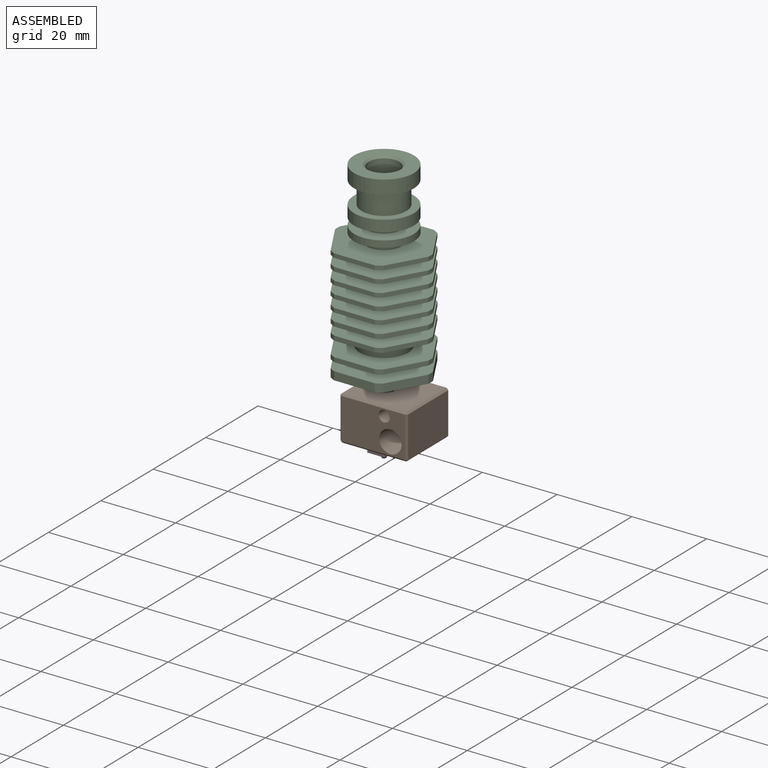
[diagram: assembled view]
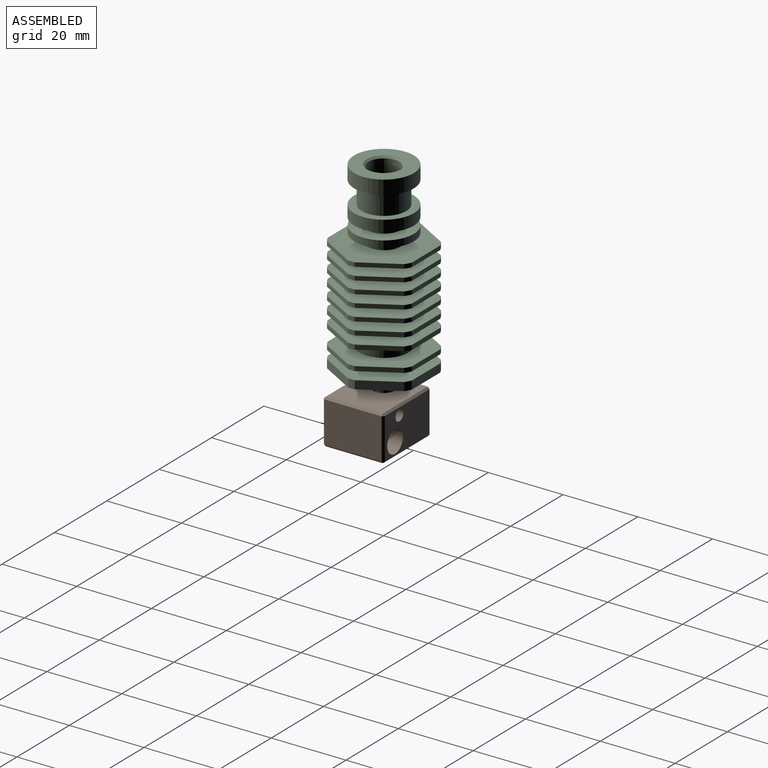
[diagram: assembled view, second angle]
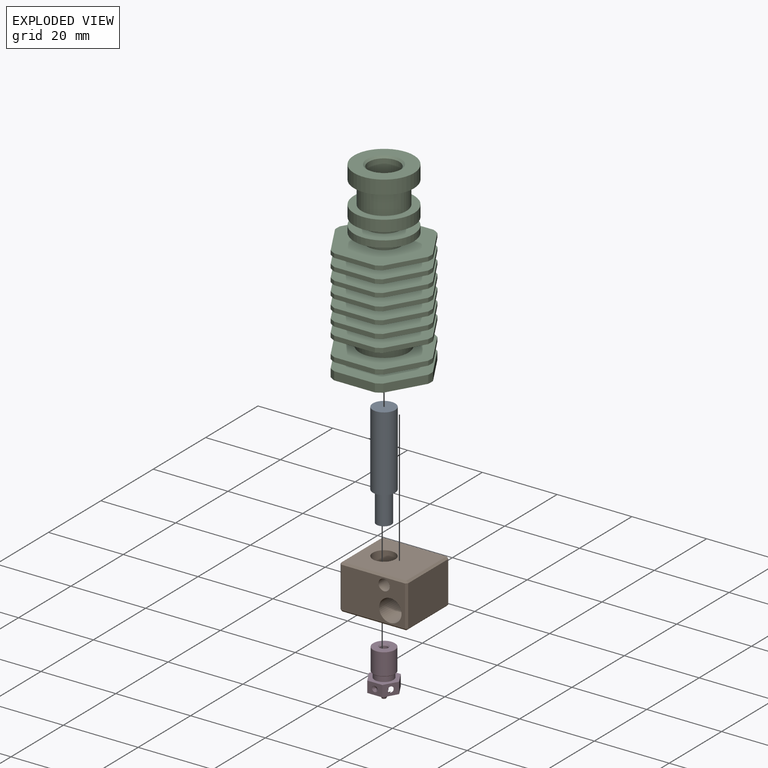
[diagram: exploded view]
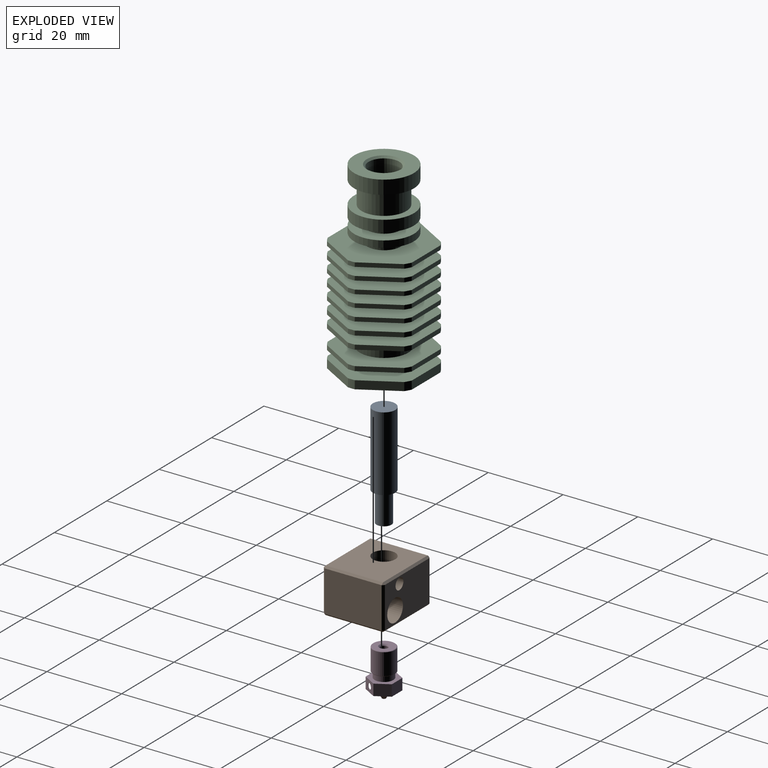
[diagram: exploded view, second angle]
ASSEMBLY  parts=4 mates=3
PART A: 5 faces, bbox 6x6x28 mm
  f0: cylinder r=3mm len=20mm, axis (0,0,-1), area 377mm2, adj f1,f2
  f1: plane 6x6mm, normal (0,0,1), area 28.3mm2, adj f0
  f2: plane 6x6mm, normal (0,0,-1), area 15.7mm2, adj f0,f3
  f3: cylinder r=2mm len=8mm, axis (0,0,1), area 100.5mm2, adj f2,f4
  f4: plane 4x4mm, normal (0,0,-1), area 12.6mm2, adj f3
PART B: 29 faces, bbox 16.3x18.1x12 mm
  f0: plane 15.3x11mm, normal (0,1,0), area 168.3mm2, adj f14,f23,f24,f28
  f1: plane 17.08x11mm, normal (-1,0,0), area 152.5mm2, adj f7,f8,f9,f13,f14,f15
  f2: plane 15.3x11mm, normal (0,-1,0), area 168.3mm2, adj f9,f12,f16,f17
  f3: plane 17.08x11mm, normal (1,0,0), area 152.5mm2, adj f7,f8,f17,f22,f25,f28
  f4: plane 17.08x15.3mm, normal (0,0,1), area 233.1mm2, adj f6,f12,f13,f22,f23
  f5: plane 17.08x15.3mm, normal (0,0,-1), area 233.1mm2, adj f6,f15,f16,f24,f25
  f6: cylinder r=3mm len=12mm, axis (0,0,-1), area 226.2mm2, adj f4,f5
  f7: cylinder r=1.5mm len=16.3mm, axis (-1,0,0), area 153.7mm2, adj f1,f3
  f8: cylinder r=3mm len=16.3mm, axis (-1,0,0), area 307.3mm2, adj f1,f3
  f9: plane 11x0.5mm, normal (-0.71,-0.71,0), area 7.8mm2, adj f1,f2,f10,f11
  f10: plane 0.5x0.5mm, normal (-0.58,-0.58,0.58), area 0.2mm2, adj f9,f12,f13
  f11: plane 0.5x0.5mm, normal (-0.58,-0.58,-0.58), area 0.2mm2, adj f9,f15,f16
  f12: plane 15.3x0.5mm, normal (0,-0.71,0.71), area 10.8mm2, adj f2,f4,f10,f18
  f13: plane 17.08x0.5mm, normal (-0.71,0,0.71), area 12.1mm2, adj f1,f4,f10,f19
  f14: plane 11x0.5mm, normal (-0.71,0.71,0), area 7.8mm2, adj f0,f1,f19,f20
  f15: plane 17.08x0.5mm, normal (-0.71,0,-0.71), area 12.1mm2, adj f1,f5,f11,f20
  f16: plane 15.3x0.5mm, normal (0,-0.71,-0.71), area 10.8mm2, adj f2,f5,f11,f21
  f17: plane 11x0.5mm, normal (0.71,-0.71,0), area 7.8mm2, adj f2,f3,f18,f21
  f18: plane 0.5x0.5mm, normal (0.58,-0.58,0.58), area 0.2mm2, adj f12,f17,f22
  f19: plane 0.5x0.5mm, normal (-0.58,0.58,0.58), area 0.2mm2, adj f13,f14,f23
  f20: plane 0.5x0.5mm, normal (-0.58,0.58,-0.58), area 0.2mm2, adj f14,f15,f24
  f21: plane 0.5x0.5mm, normal (0.58,-0.58,-0.58), area 0.2mm2, adj f16,f17,f25
  f22: plane 17.08x0.5mm, normal (0.71,0,0.71), area 12.1mm2, adj f3,f4,f18,f26
  f23: plane 15.3x0.5mm, normal (0,0.71,0.71), area 10.8mm2, adj f0,f4,f19,f26
  f24: plane 15.3x0.5mm, normal (0,0.71,-0.71), area 10.8mm2, adj f0,f5,f20,f27
  f25: plane 17.08x0.5mm, normal (0.71,0,-0.71), area 12.1mm2, adj f3,f5,f21,f27
  f26: plane 0.5x0.5mm, normal (0.58,0.58,0.58), area 0.2mm2, adj f22,f23,f28
  f27: plane 0.5x0.5mm, normal (0.58,0.58,-0.58), area 0.2mm2, adj f24,f25,f28
  f28: plane 11x0.5mm, normal (0.71,0.71,0), area 7.8mm2, adj f0,f3,f26,f27
PART C: 153 faces, bbox 25x22.5x50.4 mm
  f0: plane 25x22.5mm, normal (0,0,1), area 372.2mm2, adj f1,f2,f3,f4,f5,f6,f82,f142
  f1: cylinder r=12.5mm len=1.81mm, axis (0,0,1), area 2mm2, adj f0,f7,f146,f147
  f2: cylinder r=12.5mm len=1.57mm, axis (0,0,1), area 2mm2, adj f0,f7,f142,f147
  f3: cylinder r=12.5mm len=1.57mm, axis (0,0,1), area 2mm2, adj f0,f7,f145,f146
  f4: cylinder r=12.5mm len=1.57mm, axis (0,0,1), area 2mm2, adj f0,f7,f144,f145
  f5: cylinder r=12.5mm len=1.81mm, axis (0,0,1), area 2mm2, adj f0,f7,f143,f144
  f6: cylinder r=12.5mm len=1.57mm, axis (0,0,1), area 2mm2, adj f0,f7,f142,f143
  f7: plane 25x22.5mm, normal (0,0,-1), area 372.2mm2, adj f1,f2,f3,f4,f5,f6,f89,f142
  f8: plane 25x22.5mm, normal (0,0,-1), area 372.2mm2, adj f10,f11,f12,f13,f14,f15,f90,f136
  f9: plane 25x22.5mm, normal (0,0,1), area 372.2mm2, adj f10,f11,f12,f13,f14,f15,f89,f136
  f10: cylinder r=12.5mm len=1.81mm, axis (0,0,1), area 2mm2, adj f8,f9,f140,f141
  f11: cylinder r=12.5mm len=1.57mm, axis (0,0,1), area 2mm2, adj f8,f9,f136,f141
  f12: cylinder r=12.5mm len=1.57mm, axis (0,0,1), area 2mm2, adj f8,f9,f139,f140
  f13: cylinder r=12.5mm len=1.57mm, axis (0,0,1), area 2mm2, adj f8,f9,f138,f139
  f14: cylinder r=12.5mm len=1.81mm, axis (0,0,1), area 2mm2, adj f8,f9,f137,f138
  f15: cylinder r=12.5mm len=1.57mm, axis (0,0,1), area 2mm2, adj f8,f9,f136,f137
  f16: plane 25x22.5mm, normal (0,0,-1), area 372.2mm2, adj f18,f19,f20,f21,f22,f23,f91,f130
  f17: plane 25x22.5mm, normal (0,0,1), area 372.2mm2, adj f18,f19,f20,f21,f22,f23,f90,f130
  f18: cylinder r=12.5mm len=1.81mm, axis (0,0,1), area 2mm2, adj f16,f17,f134,f135
  f19: cylinder r=12.5mm len=1.57mm, axis (0,0,1), area 2mm2, adj f16,f17,f130,f135
  f20: cylinder r=12.5mm len=1.57mm, axis (0,0,1), area 2mm2, adj f16,f17,f133,f134
  f21: cylinder r=12.5mm len=1.57mm, axis (0,0,1), area 2mm2, adj f16,f17,f132,f133
  f22: cylinder r=12.5mm len=1.81mm, axis (0,0,1), area 2mm2, adj f16,f17,f131,f132
  f23: cylinder r=12.5mm len=1.57mm, axis (0,0,1), area 2mm2, adj f16,f17,f130,f131
  f24: plane 25x22.5mm, normal (0,0,-1), area 372.2mm2, adj f26,f27,f28,f29,f30,f31,f76,f124
  f25: plane 25x22.5mm, normal (0,0,1), area 372.2mm2, adj f26,f27,f28,f29,f30,f31,f91,f124
  f26: cylinder r=12.5mm len=1.81mm, axis (0,0,1), area 2mm2, adj f24,f25,f128,f129
  f27: cylinder r=12.5mm len=1.57mm, axis (0,0,1), area 2mm2, adj f24,f25,f124,f129
  f28: cylinder r=12.5mm len=1.57mm, axis (0,0,1), area 2mm2, adj f24,f25,f127,f128
  f29: cylinder r=12.5mm len=1.57mm, axis (0,0,1), area 2mm2, adj f24,f25,f126,f127
  f30: cylinder r=12.5mm len=1.81mm, axis (0,0,1), area 2mm2, adj f24,f25,f125,f126
  f31: cylinder r=12.5mm len=1.57mm, axis (0,0,1), area 2mm2, adj f24,f25,f124,f125
  f32: plane 25x22.5mm, normal (0,0,1), area 372.2mm2, adj f33,f34,f35,f36,f37,f38,f76,f118
  f33: cylinder r=12.5mm len=1.81mm, axis (0,0,1), area 2mm2, adj f32,f39,f122,f123
  f34: cylinder r=12.5mm len=1.57mm, axis (0,0,1), area 2mm2, adj f32,f39,f118,f123
  f35: cylinder r=12.5mm len=1.57mm, axis (0,0,1), area 2mm2, adj f32,f39,f121,f122
  f36: cylinder r=12.5mm len=1.57mm, axis (0,0,1), area 2mm2, adj f32,f39,f120,f121
  f37: cylinder r=12.5mm len=1.81mm, axis (0,0,1), area 2mm2, adj f32,f39,f119,f120
  f38: cylinder r=12.5mm len=1.57mm, axis (0,0,1), area 2mm2, adj f32,f39,f118,f119
  f39: plane 25x22.5mm, normal (0,0,-1), area 303.1mm2, adj f33,f34,f35,f36,f37,f38,f75,f118
  f40: plane 25x22.5mm, normal (0,0,1), area 303.1mm2, adj f41,f42,f43,f44,f45,f46,f75,f112
  f41: cylinder r=12.5mm len=1.81mm, axis (0,0,1), area 2.2mm2, adj f40,f47,f116,f117
  f42: cylinder r=12.5mm len=1.57mm, axis (0,0,1), area 2.2mm2, adj f40,f47,f112,f117
  f43: cylinder r=12.5mm len=1.57mm, axis (0,0,1), area 2.2mm2, adj f40,f47,f115,f116
  f44: cylinder r=12.5mm len=1.57mm, axis (0,0,1), area 2.2mm2, adj f40,f47,f114,f115
  f45: cylinder r=12.5mm len=1.81mm, axis (0,0,1), area 2.2mm2, adj f40,f47,f113,f114
  f46: cylinder r=12.5mm len=1.57mm, axis (0,0,1), area 2.2mm2, adj f40,f47,f112,f113
  f47: plane 25x22.5mm, normal (0,0,-1), area 303.1mm2, adj f41,f42,f43,f44,f45,f46,f74,f112
  f48: plane 25x22.5mm, normal (0,0,1), area 303.1mm2, adj f49,f50,f51,f52,f53,f54,f74,f106
  f49: cylinder r=12.5mm len=1.81mm, axis (0,0,1), area 2.2mm2, adj f48,f55,f110,f111
  f50: cylinder r=12.5mm len=1.57mm, axis (0,0,1), area 2.2mm2, adj f48,f55,f106,f111
  f51: cylinder r=12.5mm len=1.57mm, axis (0,0,1), area 2.2mm2, adj f48,f55,f109,f110
  f52: cylinder r=12.5mm len=1.57mm, axis (0,0,1), area 2.2mm2, adj f48,f55,f108,f109
  f53: cylinder r=12.5mm len=1.81mm, axis (0,0,1), area 2.2mm2, adj f48,f55,f107,f108
  f54: cylinder r=12.5mm len=1.57mm, axis (0,0,1), area 2.2mm2, adj f48,f55,f106,f107
  f55: plane 25x22.5mm, normal (0,0,-1), area 303.1mm2, adj f49,f50,f51,f52,f53,f54,f73,f106
  f56: plane 25x22.5mm, normal (0,0,1), area 303.1mm2, adj f57,f58,f59,f60,f61,f62,f73,f100
  f57: cylinder r=12.5mm len=1.81mm, axis (0,0,1), area 2.2mm2, adj f56,f63,f104,f105
  f58: cylinder r=12.5mm len=1.57mm, axis (0,0,1), area 2.2mm2, adj f56,f63,f100,f105
  f59: cylinder r=12.5mm len=1.57mm, axis (0,0,1), area 2.2mm2, adj f56,f63,f103,f104
  f60: cylinder r=12.5mm len=1.57mm, axis (0,0,1), area 2.2mm2, adj f56,f63,f102,f103
  f61: cylinder r=12.5mm len=1.81mm, axis (0,0,1), area 2.2mm2, adj f56,f63,f101,f102
  f62: cylinder r=12.5mm len=1.57mm, axis (0,0,1), area 2.2mm2, adj f56,f63,f100,f101
  f63: plane 25x22.5mm, normal (0,0,-1), area 303.1mm2, adj f57,f58,f59,f60,f61,f62,f72,f100
  f64: plane 25x22.5mm, normal (0,0,1), area 303.1mm2, adj f65,f66,f67,f68,f69,f70,f72,f94
  f65: cylinder r=12.5mm len=2.2mm, axis (0,0,1), area 4mm2, adj f64,f71,f98,f99
  f66: cylinder r=12.5mm len=2.2mm, axis (0,0,1), area 4mm2, adj f64,f71,f94,f99
  f67: cylinder r=12.5mm len=2.2mm, axis (0,0,1), area 4mm2, adj f64,f71,f97,f98
  f68: cylinder r=12.5mm len=2.2mm, axis (0,0,1), area 4mm2, adj f64,f71,f96,f97
  f69: cylinder r=12.5mm len=2.2mm, axis (0,0,1), area 4mm2, adj f64,f71,f95,f96
  f70: cylinder r=12.5mm len=2.2mm, axis (0,0,1), area 4mm2, adj f64,f71,f94,f95
  f71: plane 25x22.5mm, normal (0,0,-1), area 281.9mm2, adj f65,f66,f67,f68,f69,f70,f92,f94
  f72: cylinder r=6.5mm len=13mm, axis (0,0,-1), area 89.8mm2, adj f63,f64
  f73: cylinder r=6.5mm len=13mm, axis (0,0,-1), area 163.4mm2, adj f55,f56
  f74: cylinder r=6.5mm len=13mm, axis (0,0,-1), area 89.8mm2, adj f47,f48
  f75: cylinder r=6.5mm len=13mm, axis (0,0,-1), area 89.8mm2, adj f39,f40
  f76: cylinder r=4.5mm len=9mm, axis (0,0,1), area 62.2mm2, adj f24,f32
  f77: plane 16x16mm, normal (0,0,-1), area 137.4mm2, adj f78,f88
  f78: cylinder r=4.5mm len=9mm, axis (0,0,1), area 56.5mm2, adj f77,f79
  f79: plane 16x16mm, normal (0,0,1), area 137.4mm2, adj f78,f80
  f80: cylinder r=8mm len=16mm, axis (0,0,1), area 90.5mm2, adj f79,f81
  f81: plane 16x16mm, normal (0,0,-1), area 137.4mm2, adj f80,f82
  f82: cylinder r=4.5mm len=9mm, axis (0,0,1), area 62.2mm2, adj f0,f81
  f83: plane 16x16mm, normal (0,0,1), area 134.6mm2, adj f84,f152
  f84: cylinder r=8mm len=16mm, axis (0,0,1), area 186mm2, adj f83,f85
  f85: plane 16x16mm, normal (0,0,-1), area 88mm2, adj f84,f86
  f86: cylinder r=6mm len=12mm, axis (0,0,1), area 226.2mm2, adj f85,f87
  f87: plane 16x16mm, normal (0,0,1), area 88mm2, adj f86,f88
  f88: cylinder r=8mm len=16mm, axis (0,0,1), area 150.8mm2, adj f77,f87
  f89: cylinder r=4.5mm len=9mm, axis (0,0,1), area 62.2mm2, adj f7,f9
  f90: cylinder r=4.5mm len=9mm, axis (0,0,1), area 62.2mm2, adj f8,f17
  f91: cylinder r=4.5mm len=9mm, axis (0,0,1), area 62.2mm2, adj f16,f25
  f92: cone r=7mm half-angle=45deg, axis (0,0,1), area 57.8mm2, adj f71,f93
  f93: plane 12x12mm, normal (0,0,-1), area 84.8mm2, adj f92,f150
  f94: plane 10.9x2.2mm, normal (0,-1,0), area 24mm2, adj f64,f66,f70,f71
  f95: plane 9.44x5.45mm, normal (-0.87,-0.5,0), area 24mm2, adj f64,f69,f70,f71
  f96: plane 9.44x5.45mm, normal (-0.87,0.5,0), area 24mm2, adj f64,f68,f69,f71
  f97: plane 10.9x2.2mm, normal (0,1,0), area 24mm2, adj f64,f67,f68,f71
  f98: plane 9.44x5.45mm, normal (0.87,0.5,0), area 24mm2, adj f64,f65,f67,f71
  f99: plane 9.44x5.45mm, normal (0.87,-0.5,0), area 24mm2, adj f64,f65,f66,f71
  f100: plane 10.9x1.2mm, normal (0,-1,0), area 13.1mm2, adj f56,f58,f62,f63
  f101: plane 9.44x5.45mm, normal (-0.87,-0.5,0), area 13.1mm2, adj f56,f61,f62,f63
  f102: plane 9.44x5.45mm, normal (-0.87,0.5,0), area 13.1mm2, adj f56,f60,f61,f63
  f103: plane 10.9x1.2mm, normal (0,1,0), area 13.1mm2, adj f56,f59,f60,f63
  f104: plane 9.44x5.45mm, normal (0.87,0.5,0), area 13.1mm2, adj f56,f57,f59,f63
  f105: plane 9.44x5.45mm, normal (0.87,-0.5,0), area 13.1mm2, adj f56,f57,f58,f63
  f106: plane 10.9x1.2mm, normal (0,-1,0), area 13.1mm2, adj f48,f50,f54,f55
  f107: plane 9.44x5.45mm, normal (-0.87,-0.5,0), area 13.1mm2, adj f48,f53,f54,f55
  f108: plane 9.44x5.45mm, normal (-0.87,0.5,0), area 13.1mm2, adj f48,f52,f53,f55
  f109: plane 10.9x1.2mm, normal (0,1,0), area 13.1mm2, adj f48,f51,f52,f55
  f110: plane 9.44x5.45mm, normal (0.87,0.5,0), area 13.1mm2, adj f48,f49,f51,f55
  f111: plane 9.44x5.45mm, normal (0.87,-0.5,0), area 13.1mm2, adj f48,f49,f50,f55
  f112: plane 10.9x1.2mm, normal (0,-1,0), area 13.1mm2, adj f40,f42,f46,f47
  f113: plane 9.44x5.45mm, normal (-0.87,-0.5,0), area 13.1mm2, adj f40,f45,f46,f47
  f114: plane 9.44x5.45mm, normal (-0.87,0.5,0), area 13.1mm2, adj f40,f44,f45,f47
  f115: plane 10.9x1.2mm, normal (0,1,0), area 13.1mm2, adj f40,f43,f44,f47
  f116: plane 9.44x5.45mm, normal (0.87,0.5,0), area 13.1mm2, adj f40,f41,f43,f47
  f117: plane 9.44x5.45mm, normal (0.87,-0.5,0), area 13.1mm2, adj f40,f41,f42,f47
  f118: plane 10.9x1.1mm, normal (0,-1,0), area 12mm2, adj f32,f34,f38,f39
  f119: plane 9.44x5.45mm, normal (-0.87,-0.5,0), area 12mm2, adj f32,f37,f38,f39
  f120: plane 9.44x5.45mm, normal (-0.87,0.5,0), area 12mm2, adj f32,f36,f37,f39
  f121: plane 10.9x1.1mm, normal (0,1,0), area 12mm2, adj f32,f35,f36,f39
  f122: plane 9.44x5.45mm, normal (0.87,0.5,0), area 12mm2, adj f32,f33,f35,f39
  f123: plane 9.44x5.45mm, normal (0.87,-0.5,0), area 12mm2, adj f32,f33,f34,f39
  f124: plane 10.9x1.1mm, normal (0,-1,0), area 12mm2, adj f24,f25,f27,f31
  f125: plane 9.44x5.45mm, normal (-0.87,-0.5,0), area 12mm2, adj f24,f25,f30,f31
  f126: plane 9.44x5.45mm, normal (-0.87,0.5,0), area 12mm2, adj f24,f25,f29,f30
  f127: plane 10.9x1.1mm, normal (0,1,0), area 12mm2, adj f24,f25,f28,f29
  f128: plane 9.44x5.45mm, normal (0.87,0.5,0), area 12mm2, adj f24,f25,f26,f28
  f129: plane 9.44x5.45mm, normal (0.87,-0.5,0), area 12mm2, adj f24,f25,f26,f27
  f130: plane 10.9x1.1mm, normal (0,-1,0), area 12mm2, adj f16,f17,f19,f23
  f131: plane 9.44x5.45mm, normal (-0.87,-0.5,0), area 12mm2, adj f16,f17,f22,f23
  f132: plane 9.44x5.45mm, normal (-0.87,0.5,0), area 12mm2, adj f16,f17,f21,f22
  f133: plane 10.9x1.1mm, normal (0,1,0), area 12mm2, adj f16,f17,f20,f21
  f134: plane 9.44x5.45mm, normal (0.87,0.5,0), area 12mm2, adj f16,f17,f18,f20
  f135: plane 9.44x5.45mm, normal (0.87,-0.5,0), area 12mm2, adj f16,f17,f18,f19
  f136: plane 10.9x1.1mm, normal (0,-1,0), area 12mm2, adj f8,f9,f11,f15
  f137: plane 9.44x5.45mm, normal (-0.87,-0.5,0), area 12mm2, adj f8,f9,f14,f15
  f138: plane 9.44x5.45mm, normal (-0.87,0.5,0), area 12mm2, adj f8,f9,f13,f14
  f139: plane 10.9x1.1mm, normal (0,1,0), area 12mm2, adj f8,f9,f12,f13
  f140: plane 9.44x5.45mm, normal (0.87,0.5,0), area 12mm2, adj f8,f9,f10,f12
  f141: plane 9.44x5.45mm, normal (0.87,-0.5,0), area 12mm2, adj f8,f9,f10,f11
  f142: plane 10.9x1.1mm, normal (0,-1,0), area 12mm2, adj f0,f2,f6,f7
  f143: plane 9.44x5.45mm, normal (-0.87,-0.5,0), area 12mm2, adj f0,f5,f6,f7
  f144: plane 9.44x5.45mm, normal (-0.87,0.5,0), area 12mm2, adj f0,f4,f5,f7
  f145: plane 10.9x1.1mm, normal (0,1,0), area 12mm2, adj f0,f3,f4,f7
  f146: plane 9.44x5.45mm, normal (0.87,0.5,0), area 12mm2, adj f0,f1,f3,f7
  f147: plane 9.44x5.45mm, normal (0.87,-0.5,0), area 12mm2, adj f0,f1,f2,f7
  f148: cylinder r=4.1mm len=9.5mm, axis (0,0,1), area 244.7mm2, adj f149,f152
  f149: plane 8.2x8.2mm, normal (0,0,1), area 52.8mm2, adj f148
  f150: cylinder r=3mm len=20mm, axis (0,0,-1), area 377mm2, adj f93,f151
  f151: plane 6x6mm, normal (0,0,-1), area 28.3mm2, adj f150
  f152: cone r=4.1mm half-angle=45deg, axis (0,0,1), area 19.3mm2, adj f83,f148
PART D: 26 faces, bbox 7x12.5x8.1 mm
  f0: cone r=0.38mm half-angle=59deg, axis (0.5,0,0.87), area 2.1mm2, adj f1
  f1: cylinder r=0.75mm len=1.5mm, axis (-0.5,0,-0.87), area 0.5mm2, adj f0,f15
  f2: cone r=0.38mm half-angle=59deg, axis (1,0,0), area 2.1mm2, adj f3
  f3: cylinder r=0.75mm len=1.5mm, axis (-1,0,0), area 0.5mm2, adj f2,f16
  f4: cone r=0.38mm half-angle=59deg, axis (0.5,0,-0.87), area 2.1mm2, adj f5
  f5: cylinder r=0.75mm len=1.5mm, axis (-0.5,0,0.87), area 0.5mm2, adj f4,f11
  f6: cone r=2.89mm half-angle=45deg, axis (0,-1,0), area 2.6mm2, adj f7,f8
  f7: cylinder r=2.94mm len=5.88mm, axis (0,-1,0), area 107.2mm2, adj f6,f9
  f8: plane 5.68x5.68mm, normal (0,1,0), area 5.7mm2, adj f6,f18
  f9: cone r=2.89mm half-angle=45deg, axis (0,1,0), area 2.6mm2, adj f7,f10
  f10: plane 5.68x5.68mm, normal (0,-1,0), area 20.1mm2, adj f9,f19
  f11: plane 3.5x3mm, normal (0.5,0,-0.87), area 10.4mm2, adj f5,f12,f16,f17,f25
  f12: plane 3.5x3mm, normal (-0.5,0,-0.87), area 12.1mm2, adj f11,f13,f17,f25
  f13: plane 4.04x3mm, normal (-1,0,0), area 12.1mm2, adj f12,f14,f17,f25
  f14: plane 3.5x3mm, normal (-0.5,0,0.87), area 12.1mm2, adj f13,f15,f17,f25
  f15: plane 3.5x3mm, normal (0.5,0,0.87), area 10.4mm2, adj f1,f14,f16,f17,f25
  f16: plane 4.04x3mm, normal (1,0,0), area 10.4mm2, adj f3,f11,f15,f17,f25
  f17: plane 8.08x7mm, normal (0,-1,0), area 22.8mm2, adj f11,f12,f13,f14,f15,f16,f18
  f18: cylinder r=2.5mm len=5mm, axis (0,-1,0), area 23.6mm2, adj f8,f17
  f19: cone r=1.15mm half-angle=41.5deg, axis (0,-1,0), area 3.3mm2, adj f10,f20
  f20: cylinder r=1mm len=10.18mm, axis (0,-1,0), area 63.9mm2, adj f19,f21
  f21: cone r=0.6mm half-angle=30deg, axis (0,-1,0), area 6mm2, adj f20,f22
  f22: cylinder r=0.2mm len=0.6mm, axis (0,-1,0), area 0.8mm2, adj f21,f23
  f23: plane 1x1mm, normal (0,1,0), area 0.7mm2, adj f22,f24
  f24: cone r=1.08mm half-angle=30deg, axis (0,-1,0), area 15.6mm2, adj f23,f25
  f25: plane 8.08x7mm, normal (0,1,0), area 33.8mm2, adj f11,f12,f13,f14,f15,f16,f24
PLACE A t=(-29.11,9.79,14.7)mm
PLACE B rot(axis=(0,0,-1),90deg) t=(-29.11,9.79,-0.8)mm
PLACE C t=(-29.11,9.79,-5.8)mm fixed
PLACE D rot(axis=(-0.58,0.58,-0.58),120deg) t=(-29.11,9.79,-51.49)mm
MATE fastened A.f3 <-> D.f6  axis (0,0,-1) through (-29.11,9.79,6.7)mm
MATE fastened A.f0 <-> C.f150  axis (0,0,-1) through (-29.11,9.79,14.7)mm
MATE fastened D.f6 <-> B.f6  axis (0,0,1) through (-29.11,9.79,-0.8)mm
